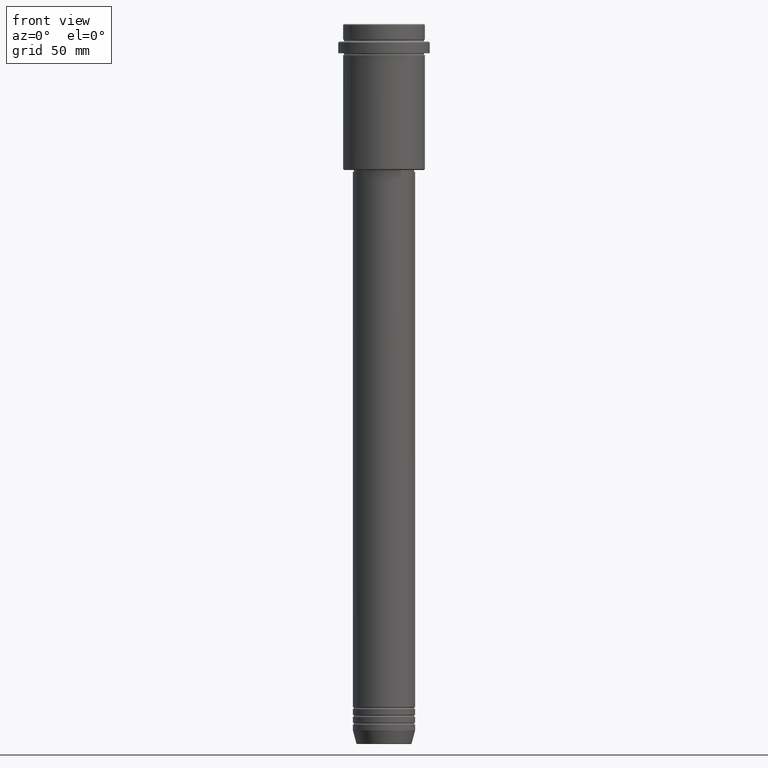
[diagram: clean part render]
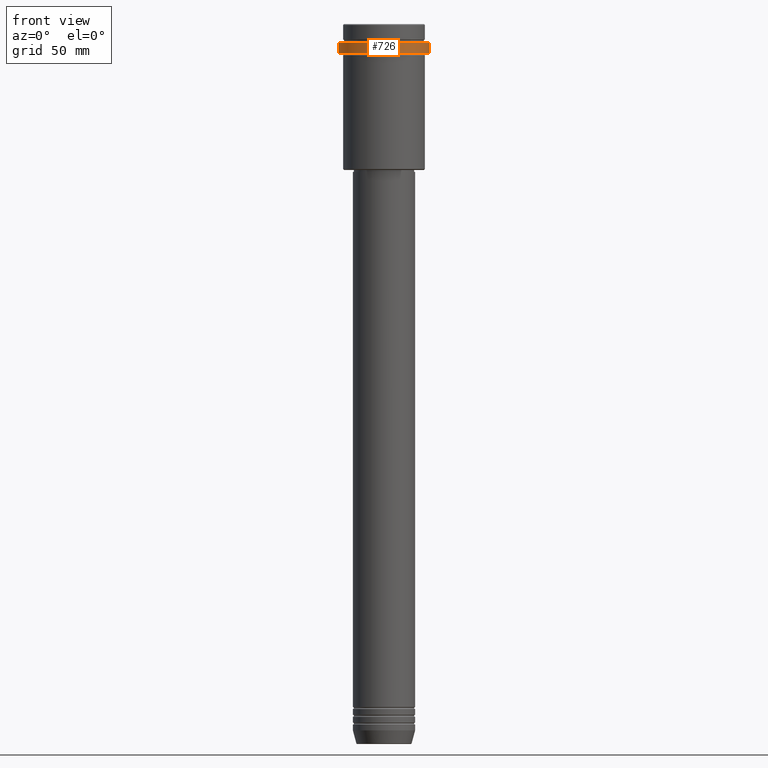
[diagram: same view with one face highlighted and labeled with its STEP entity id]
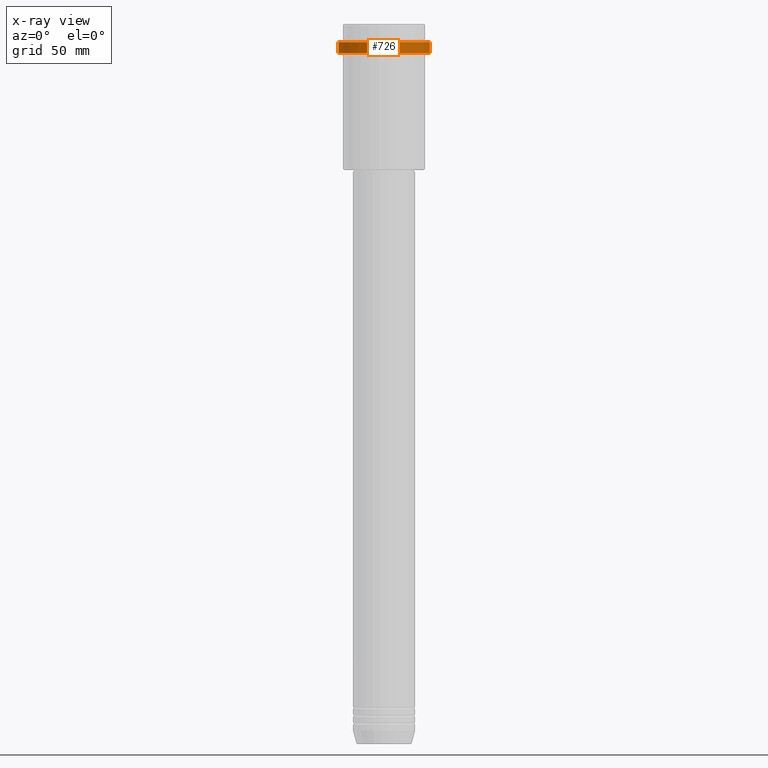
[diagram: x-ray of the same camera — body ghosted, the highlighted face saturated]
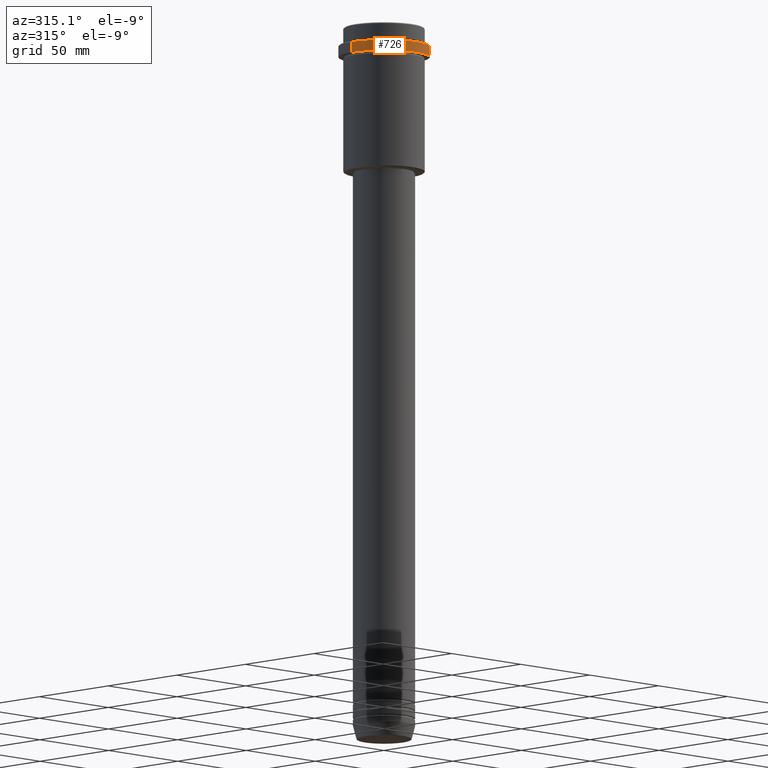
[diagram: same view with one face highlighted and labeled with its STEP entity id]
A machine part, front view. The second image highlights one B-rep face of the part: STEP entity #726.
The next image is the same camera in x-ray: the body ghosted, the highlighted face saturated — about 0% of this face is hidden behind the body in this view.
A second angle (auxiliary view) of the same face is appended — the face is thin or edge-on in the first view.
In plain terms, the highlighted cylindrical surface (partial cylindrical patch) has radius 23.5 mm, axis along (-0, -0, 1).
Its self-contained STEP definition (entity closure, byte-faithful):
#23 = VERTEX_POINT ( 'NONE', #695 ) ;
#119 = DIRECTION ( 'NONE',  ( -0.000000000000000000, -0.000000000000000000, 1.000000000000000000 ) ) ;
#135 = DIRECTION ( 'NONE',  ( 1.000000000000000000, 0.000000000000000000, 0.000000000000000000 ) ) ;
#138 = CARTESIAN_POINT ( 'NONE',  ( 23.50000000000000000, 0.000000000000000000, 0.000000000000000000 ) ) ;
#148 = VERTEX_POINT ( 'NONE', #427 ) ;
#188 = ORIENTED_EDGE ( 'NONE', *, *, #945, .T. ) ;
#216 = AXIS2_PLACEMENT_3D ( 'NONE', #842, #1288, #969 ) ;
#235 = CARTESIAN_POINT ( 'NONE',  ( 0.000000000000000000, 0.000000000000000000, -15.00000000000000000 ) ) ;
#311 = FACE_OUTER_BOUND ( 'NONE', #1187, .T. ) ;
#323 = ORIENTED_EDGE ( 'NONE', *, *, #936, .T. ) ;
#326 = VERTEX_POINT ( 'NONE', #1206 ) ;
#416 = VECTOR ( 'NONE', #119, 1000.000000000000000 ) ;
#427 = CARTESIAN_POINT ( 'NONE',  ( -23.50000000000000711, 2.877919977996281109E-15, -15.00000000000000000 ) ) ;
#462 = DIRECTION ( 'NONE',  ( -0.000000000000000000, -0.000000000000000000, 1.000000000000000000 ) ) ;
#473 = DIRECTION ( 'NONE',  ( -0.000000000000000000, -0.000000000000000000, 1.000000000000000000 ) ) ;
#532 = ORIENTED_EDGE ( 'NONE', *, *, #1051, .F. ) ;
#534 = CYLINDRICAL_SURFACE ( 'NONE', #216, 23.50000000000000000 ) ;
#695 = CARTESIAN_POINT ( 'NONE',  ( -23.50000000000000000, 2.877919977996280320E-15, -9.500000000000055067 ) ) ;
#726 = ADVANCED_FACE ( 'NONE', ( #311 ), #534, .T. ) ;
#761 = EDGE_CURVE ( 'NONE', #148, #980, #811, .T. ) ;
#791 = DIRECTION ( 'NONE',  ( 0.000000000000000000, 0.000000000000000000, -1.000000000000000000 ) ) ;
#811 = CIRCLE ( 'NONE', #851, 23.50000000000000355 ) ;
#813 = AXIS2_PLACEMENT_3D ( 'NONE', #1033, #791, #1234 ) ;
#842 = CARTESIAN_POINT ( 'NONE',  ( 0.000000000000000000, 0.000000000000000000, 0.000000000000000000 ) ) ;
#851 = AXIS2_PLACEMENT_3D ( 'NONE', #235, #462, #135 ) ;
#936 = EDGE_CURVE ( 'NONE', #980, #326, #1129, .T. ) ;
#945 = EDGE_CURVE ( 'NONE', #326, #23, #1389, .T. ) ;
#969 = DIRECTION ( 'NONE',  ( 1.000000000000000000, 0.000000000000000000, 0.000000000000000000 ) ) ;
#980 = VERTEX_POINT ( 'NONE', #1235 ) ;
#1016 = LINE ( 'NONE', #1094, #416 ) ;
#1033 = CARTESIAN_POINT ( 'NONE',  ( 0.000000000000000000, 0.000000000000000000, -9.500000000000055067 ) ) ;
#1051 = EDGE_CURVE ( 'NONE', #148, #23, #1016, .T. ) ;
#1062 = VECTOR ( 'NONE', #473, 1000.000000000000000 ) ;
#1094 = CARTESIAN_POINT ( 'NONE',  ( -23.50000000000000000, 2.877919977996280320E-15, 0.000000000000000000 ) ) ;
#1108 = ORIENTED_EDGE ( 'NONE', *, *, #761, .T. ) ;
#1129 = LINE ( 'NONE', #138, #1062 ) ;
#1187 = EDGE_LOOP ( 'NONE', ( #532, #1108, #323, #188 ) ) ;
#1206 = CARTESIAN_POINT ( 'NONE',  ( 23.50000000000000000, 0.000000000000000000, -9.500000000000055067 ) ) ;
#1234 = DIRECTION ( 'NONE',  ( 1.000000000000000000, 0.000000000000000000, 0.000000000000000000 ) ) ;
#1235 = CARTESIAN_POINT ( 'NONE',  ( 23.50000000000000355, 0.000000000000000000, -15.00000000000000000 ) ) ;
#1288 = DIRECTION ( 'NONE',  ( -0.000000000000000000, -0.000000000000000000, 1.000000000000000000 ) ) ;
#1389 = CIRCLE ( 'NONE', #813, 23.50000000000000000 ) ;